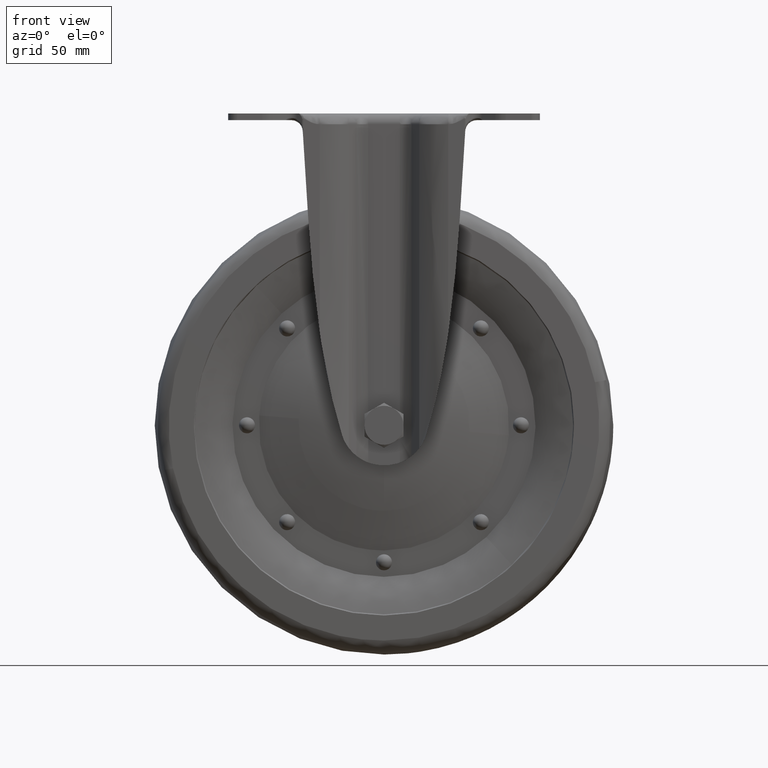
[diagram: clean part render]
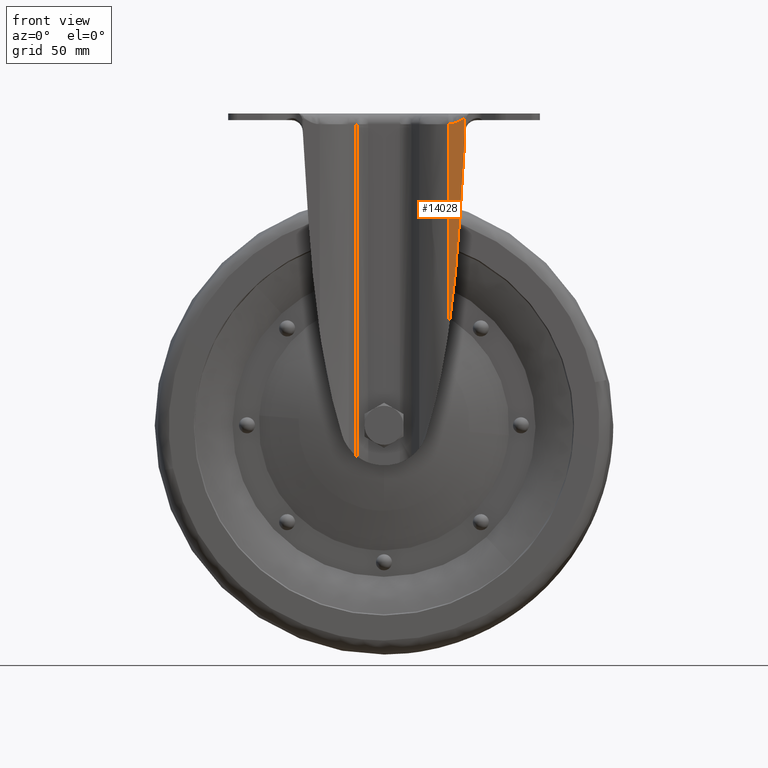
[diagram: same view with one face highlighted and labeled with its STEP entity id]
A machine part, front view. The second image highlights one B-rep face of the part: STEP entity #14028.
In plain terms, the highlighted face is a freeform B-spline surface patch.
Its self-contained STEP definition (entity closure, byte-faithful):
#10983=CARTESIAN_POINT('',(35.185680649674303,-35.454047549144512,-2.170179664889990));
#10984=VERTEX_POINT('',#10983);
#10992=CARTESIAN_POINT('',(35.185680649703947,-35.454047549145599,-11.604975727790301));
#10993=VERTEX_POINT('',#10992);
#10994=CARTESIAN_POINT('',(35.185680649703947,-35.454047549145599,-11.604975727790301));
#10995=CARTESIAN_POINT('',(35.185680649674303,-35.454047549144512,-2.170179664889990));
#10996=QUASI_UNIFORM_CURVE('',1,(#10994,#10995),.UNSPECIFIED.,.F.,.U.);
#10997=EDGE_CURVE('',#10993,#10984,#10996,.T.);
#12860=CARTESIAN_POINT('',(33.099999995641852,-35.381126537363798,-44.999999683827951));
#12861=VERTEX_POINT('',#12860);
#12862=CARTESIAN_POINT('',(35.185680649703947,-35.454047549145599,-11.604975727790301));
#12863=CARTESIAN_POINT('',(34.144712570849840,-35.417652502092160,-28.302604664375490));
#12864=CARTESIAN_POINT('',(33.099999995641852,-35.381126537363798,-44.999999683827951));
#12872=(BOUNDED_CURVE()B_SPLINE_CURVE(2,(#12862,#12863,#12864),.UNSPECIFIED.,.F.,.U.)CURVE()GEOMETRIC_REPRESENTATION_ITEM()QUASI_UNIFORM_CURVE()RATIONAL_B_SPLINE_CURVE((1.0,0.999999987158268,1.0))REPRESENTATION_ITEM(''));
#12873=EDGE_CURVE('',#10993,#12861,#12872,.T.);
#13114=CARTESIAN_POINT('',(31.099998942035299,-35.311201115124852,-70.000004099630004));
#13115=VERTEX_POINT('',#13114);
#13116=CARTESIAN_POINT('',(28.024117028846401,-35.203659174933449,-95.460098186540208));
#13117=VERTEX_POINT('',#13116);
#13118=CARTESIAN_POINT('',(31.099998942035299,-35.311201115124852,-70.000004099630004));
#13119=CARTESIAN_POINT('',(29.855603663266113,-35.267693705394358,-82.765514949230322));
#13120=CARTESIAN_POINT('',(28.024117028846440,-35.203660001008579,-95.460098186540222));
#13128=(BOUNDED_CURVE()B_SPLINE_CURVE(2,(#13118,#13119,#13120),.UNSPECIFIED.,.F.,.U.)CURVE()GEOMETRIC_REPRESENTATION_ITEM()QUASI_UNIFORM_CURVE()RATIONAL_B_SPLINE_CURVE((1.0,0.999734240856995,1.0))REPRESENTATION_ITEM(''));
#13129=EDGE_CURVE('',#13115,#13117,#13128,.T.);
#13305=CARTESIAN_POINT('',(33.099999995641852,-35.381126537363798,-44.999999683827951));
#13306=CARTESIAN_POINT('',(32.316821889717517,-35.353744521916596,-57.517347661149003));
#13307=CARTESIAN_POINT('',(31.099999565046279,-35.311201136907002,-70.000004099630004));
#13315=(BOUNDED_CURVE()B_SPLINE_CURVE(2,(#13305,#13306,#13307),.UNSPECIFIED.,.F.,.U.)CURVE()GEOMETRIC_REPRESENTATION_ITEM()QUASI_UNIFORM_CURVE()RATIONAL_B_SPLINE_CURVE((1.0,0.999849596144460,1.0))REPRESENTATION_ITEM(''));
#13316=EDGE_CURVE('',#12861,#13115,#13315,.T.);
#13949=CARTESIAN_POINT('',(28.024116999999801,-35.203659999999999,-4.700000000000000));
#13950=VERTEX_POINT('',#13949);
#13951=CARTESIAN_POINT('',(28.024117028846401,-35.203659174933449,-95.460098186540208));
#13952=CARTESIAN_POINT('',(28.024116999999801,-35.203659999999999,-4.700000000000000));
#13953=QUASI_UNIFORM_CURVE('',1,(#13951,#13952),.UNSPECIFIED.,.F.,.U.);
#13954=EDGE_CURVE('',#13117,#13950,#13953,.T.);
#14000=CARTESIAN_POINT('',(35.543400740126167,-35.466554406740052,-100.119929435882700));
#14001=CARTESIAN_POINT('',(27.666396717489469,-35.191153135689582,-100.119929435882700));
#14002=CARTESIAN_POINT('',(35.543400740126167,-35.466554406740052,2.489654086683086));
#14003=CARTESIAN_POINT('',(27.666396717489469,-35.191153135689582,2.489654086683086));
#14004=B_SPLINE_SURFACE_WITH_KNOTS('',1,1,((#14000,#14002),(#14001,#14003)),.UNSPECIFIED.,.F.,.F.,.U.,(2,2),(2,2),(0.0,7.881816937276009),(0.0,102.609583522565800),.UNSPECIFIED.);
#14005=ORIENTED_EDGE('',*,*,#12873,.F.);
#14006=ORIENTED_EDGE('',*,*,#10997,.T.);
#14007=CARTESIAN_POINT('',(31.604898824837068,-35.328853774572238,-3.919197542482182));
#14008=VERTEX_POINT('',#14007);
#14009=CARTESIAN_POINT('',(35.185680649674303,-35.454047549144491,-2.170179664889994));
#14010=CARTESIAN_POINT('',(33.992086708061898,-35.412316290953747,-2.815656611606240));
#14011=CARTESIAN_POINT('',(32.798492766449492,-35.370585032763003,-3.448111695383742));
#14012=CARTESIAN_POINT('',(31.604898824837068,-35.328853774572252,-3.919197542482182));
#14013=B_SPLINE_CURVE_WITH_KNOTS('',3,(#14009,#14010,#14011,#14012),.UNSPECIFIED.,.F.,.U.,(4,4),(0.0,0.320638016400921),.UNSPECIFIED.);
#14014=EDGE_CURVE('',#10984,#14008,#14013,.T.);
#14015=ORIENTED_EDGE('',*,*,#14014,.T.);
#14016=CARTESIAN_POINT('',(31.604898824837068,-35.328853774572252,-3.919197542482182));
#14017=CARTESIAN_POINT('',(30.411304883224659,-35.287122516381487,-4.390283389580621));
#14018=CARTESIAN_POINT('',(29.217710941612228,-35.245391258190743,-4.700000000000000));
#14019=CARTESIAN_POINT('',(28.024116999999801,-35.203659999999999,-4.700000000000000));
#14020=B_SPLINE_CURVE_WITH_KNOTS('',3,(#14016,#14017,#14018,#14019),.UNSPECIFIED.,.F.,.U.,(4,4),(0.320638016400921,0.641276032801843),.UNSPECIFIED.);
#14021=EDGE_CURVE('',#14008,#13950,#14020,.T.);
#14022=ORIENTED_EDGE('',*,*,#14021,.T.);
#14023=ORIENTED_EDGE('',*,*,#13954,.F.);
#14024=ORIENTED_EDGE('',*,*,#13129,.F.);
#14025=ORIENTED_EDGE('',*,*,#13316,.F.);
#14026=EDGE_LOOP('',(#14005,#14006,#14015,#14022,#14023,#14024,#14025));
#14027=FACE_OUTER_BOUND('',#14026,.T.);
#14028=ADVANCED_FACE('',(#14027),#14004,.F.);